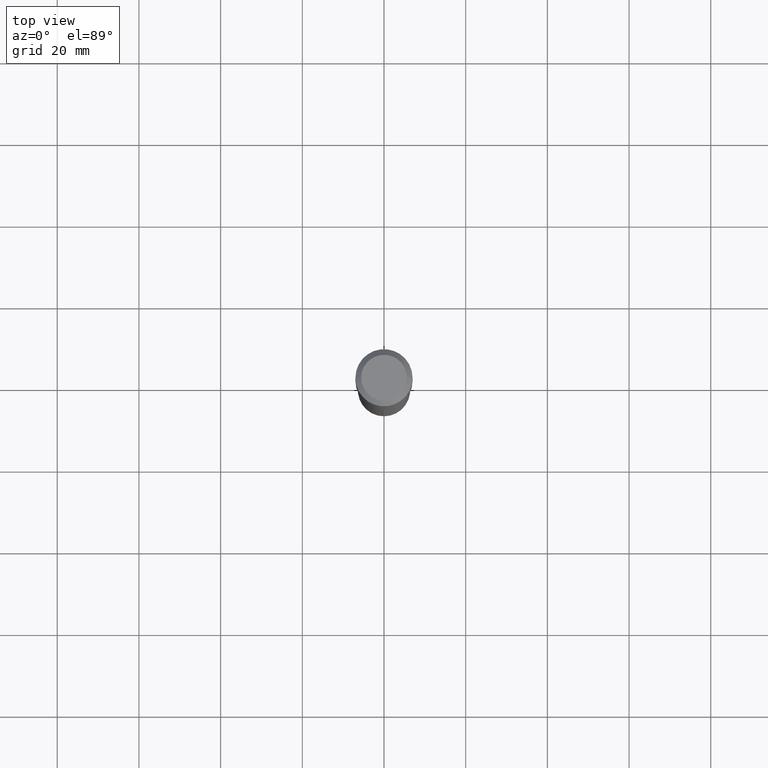
[diagram: clean part render]
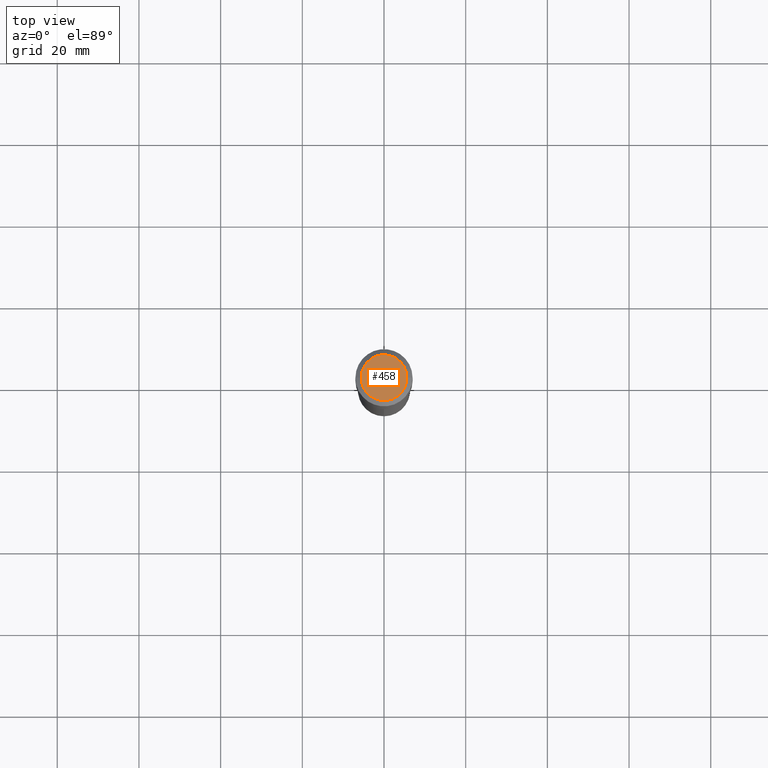
[diagram: same view with one face highlighted and labeled with its STEP entity id]
A machine part, top view. The second image highlights one B-rep face of the part: STEP entity #458.
In plain terms, the highlighted planar face has unit normal (0, -0, -1).
Its self-contained STEP definition (entity closure, byte-faithful):
#16 = EDGE_CURVE ( 'NONE', #318, #445, #433, .T. ) ;
#21 = CARTESIAN_POINT ( 'NONE',  ( -0.2204800000000000093, 1.635828836874783961E-15, 3.860086710901350968E-18 ) ) ;
#31 = CARTESIAN_POINT ( 'NONE',  ( -9.439721640706190018E-47, 1.347742071746724849E-32, 3.860086710912454339E-18 ) ) ;
#35 = CARTESIAN_POINT ( 'NONE',  ( 0.2204800000000000093, -1.797903149065768707E-15, 3.860086710924123164E-18 ) ) ;
#69 = ORIENTED_EDGE ( 'NONE', *, *, #305, .T. ) ;
#125 = CIRCLE ( 'NONE', #443, 0.2204800000000000093 ) ;
#132 = EDGE_LOOP ( 'NONE', ( #436, #69 ) ) ;
#135 = AXIS2_PLACEMENT_3D ( 'NONE', #343, #349, #274 ) ;
#156 = FACE_OUTER_BOUND ( 'NONE', #132, .T. ) ;
#234 = DIRECTION ( 'NONE',  ( 1.000000000000000000, -6.982962677686266711E-15, 4.876132675269083677E-29 ) ) ;
#271 = PLANE ( 'NONE',  #135 ) ;
#274 = DIRECTION ( 'NONE',  ( -1.000000000000000000, 6.982962677686265922E-15, -4.876176775795935793E-29 ) ) ;
#305 = EDGE_CURVE ( 'NONE', #445, #318, #125, .T. ) ;
#318 = VERTEX_POINT ( 'NONE', #21 ) ;
#343 = CARTESIAN_POINT ( 'NONE',  ( -4.719860820353095009E-47, 6.738710358733624243E-33, 1.930043355456227170E-18 ) ) ;
#348 = DIRECTION ( 'NONE',  ( -2.445468806185136597E-29, 3.491481338843145583E-15, 1.000000000000000000 ) ) ;
#349 = DIRECTION ( 'NONE',  ( 2.438088387897960049E-29, -3.491481338843145188E-15, -1.000000000000000000 ) ) ;
#388 = CARTESIAN_POINT ( 'NONE',  ( -9.439721640706190018E-47, 1.347742071746724849E-32, 3.860086710912454339E-18 ) ) ;
#408 = DIRECTION ( 'NONE',  ( -2.445468806185136597E-29, 3.491481338843145583E-15, 1.000000000000000000 ) ) ;
#419 = DIRECTION ( 'NONE',  ( 1.000000000000000000, -6.982962677686266711E-15, 4.876132675269083677E-29 ) ) ;
#433 = CIRCLE ( 'NONE', #482, 0.2204800000000000093 ) ;
#436 = ORIENTED_EDGE ( 'NONE', *, *, #16, .T. ) ;
#443 = AXIS2_PLACEMENT_3D ( 'NONE', #31, #408, #419 ) ;
#445 = VERTEX_POINT ( 'NONE', #35 ) ;
#458 = ADVANCED_FACE ( 'NONE', ( #156 ), #271, .F. ) ;
#482 = AXIS2_PLACEMENT_3D ( 'NONE', #388, #348, #234 ) ;